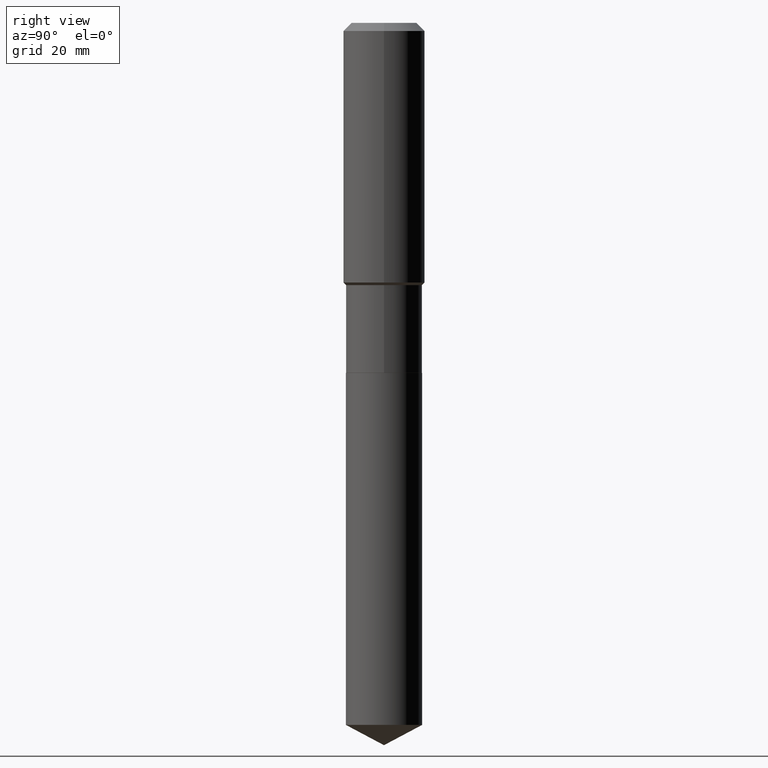
[diagram: clean part render]
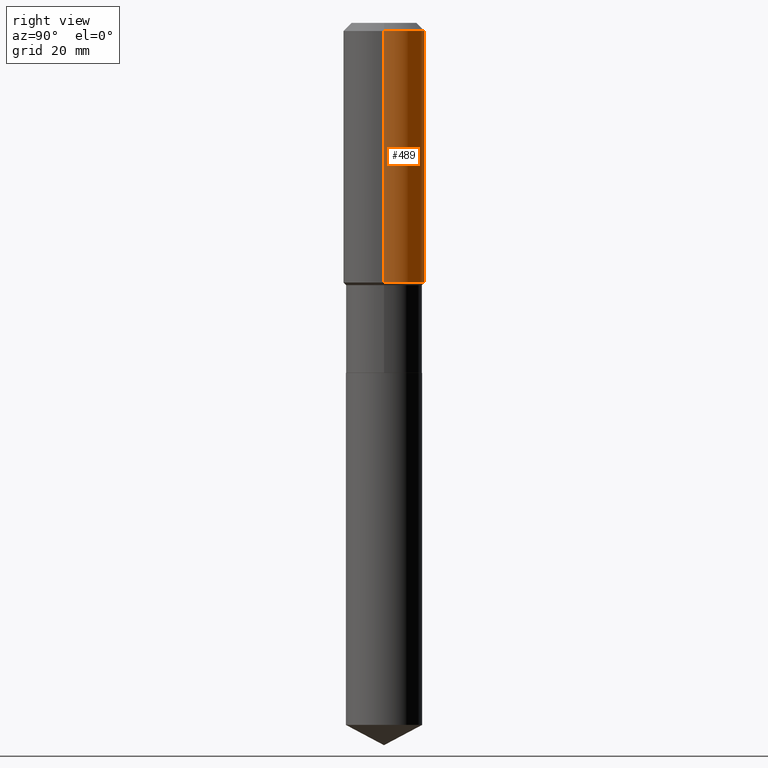
[diagram: same view with one face highlighted and labeled with its STEP entity id]
A machine part, right view. The second image highlights one B-rep face of the part: STEP entity #489.
In plain terms, the highlighted cylindrical surface (partial cylindrical patch) has radius 7.0002 mm, axis along (-0, 0, 1).
Its self-contained STEP definition (entity closure, byte-faithful):
#11 = DIRECTION ( 'NONE',  ( 1.000000000000000000, -6.982962677686265922E-15, 0.000000000000000000 ) ) ;
#22 = DIRECTION ( 'NONE',  ( 1.000000000000000000, -6.982962677686267499E-15, 0.000000000000000000 ) ) ;
#25 = DIRECTION ( 'NONE',  ( -2.445468806185136597E-29, 3.491481338843145583E-15, 1.000000000000000000 ) ) ;
#36 = AXIS2_PLACEMENT_3D ( 'NONE', #306, #196, #11 ) ;
#37 = CIRCLE ( 'NONE', #118, 0.2756000000000002337 ) ;
#42 = VECTOR ( 'NONE', #359, 39.37007874015748143 ) ;
#58 = DIRECTION ( 'NONE',  ( -2.445468806185136877E-29, 3.491481338843145188E-15, 1.000000000000000000 ) ) ;
#66 = EDGE_CURVE ( 'NONE', #382, #462, #99, .T. ) ;
#75 = VERTEX_POINT ( 'NONE', #150 ) ;
#99 = CIRCLE ( 'NONE', #36, 0.2756000000000000116 ) ;
#101 = ORIENTED_EDGE ( 'NONE', *, *, #346, .T. ) ;
#118 = AXIS2_PLACEMENT_3D ( 'NONE', #354, #134, #22 ) ;
#134 = DIRECTION ( 'NONE',  ( -2.445468806185136597E-29, 3.491481338843145583E-15, 1.000000000000000000 ) ) ;
#150 = CARTESIAN_POINT ( 'NONE',  ( -0.2756000000000002337, -4.168944821780994872E-15, -1.754899999999999016 ) ) ;
#172 = AXIS2_PLACEMENT_3D ( 'NONE', #393, #25, #176 ) ;
#176 = DIRECTION ( 'NONE',  ( 1.000000000000000000, -6.982962677686267499E-15, 4.876176775795935793E-29 ) ) ;
#178 = LINE ( 'NONE', #255, #461 ) ;
#196 = DIRECTION ( 'NONE',  ( -2.445468806185136597E-29, 3.491481338843145583E-15, 1.000000000000000000 ) ) ;
#199 = VERTEX_POINT ( 'NONE', #375 ) ;
#255 = CARTESIAN_POINT ( 'NONE',  ( 0.2756000000000001227, -1.924504513970336137E-15, 1.343874319409360548E-29 ) ) ;
#272 = ORIENTED_EDGE ( 'NONE', *, *, #366, .F. ) ;
#296 = LINE ( 'NONE', #322, #42 ) ;
#301 = ORIENTED_EDGE ( 'NONE', *, *, #451, .T. ) ;
#306 = CARTESIAN_POINT ( 'NONE',  ( 1.347942405969256063E-30, -1.924504513970354330E-16, -0.05512000000000035621 ) ) ;
#322 = CARTESIAN_POINT ( 'NONE',  ( -0.2756000000000001227, 1.958255779754836984E-15, -1.355658510874252567E-29 ) ) ;
#346 = EDGE_CURVE ( 'NONE', #75, #462, #296, .T. ) ;
#354 = CARTESIAN_POINT ( 'NONE',  ( 4.291553207974293790E-29, -6.127200601535833039E-15, -1.754899999999999016 ) ) ;
#358 = CARTESIAN_POINT ( 'NONE',  ( 0.2756000000000000116, -2.116954965367370658E-15, -0.05512000000000035621 ) ) ;
#359 = DIRECTION ( 'NONE',  ( -2.445468806185136877E-29, 3.491481338843145188E-15, 1.000000000000000000 ) ) ;
#366 = EDGE_CURVE ( 'NONE', #199, #382, #178, .T. ) ;
#368 = FACE_OUTER_BOUND ( 'NONE', #467, .T. ) ;
#373 = ORIENTED_EDGE ( 'NONE', *, *, #66, .F. ) ;
#375 = CARTESIAN_POINT ( 'NONE',  ( 0.2756000000000002337, -8.051705115506168782E-15, -1.754899999999999016 ) ) ;
#382 = VERTEX_POINT ( 'NONE', #358 ) ;
#393 = CARTESIAN_POINT ( 'NONE',  ( 0.000000000000000000, 0.000000000000000000, 0.000000000000000000 ) ) ;
#451 = EDGE_CURVE ( 'NONE', #199, #75, #37, .T. ) ;
#461 = VECTOR ( 'NONE', #58, 39.37007874015748143 ) ;
#462 = VERTEX_POINT ( 'NONE', #477 ) ;
#467 = EDGE_LOOP ( 'NONE', ( #301, #101, #373, #272 ) ) ;
#477 = CARTESIAN_POINT ( 'NONE',  ( -0.2756000000000000116, -1.201569746711596994E-15, -0.05512000000000035621 ) ) ;
#485 = CYLINDRICAL_SURFACE ( 'NONE', #172, 0.2756000000000001227 ) ;
#489 = ADVANCED_FACE ( 'NONE', ( #368 ), #485, .T. ) ;